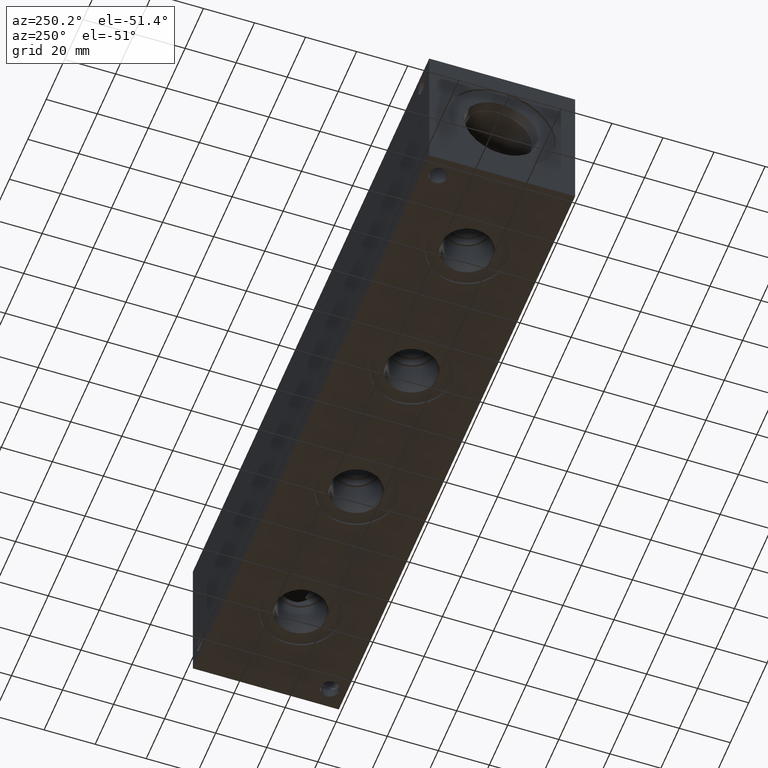
[diagram: clean part render]
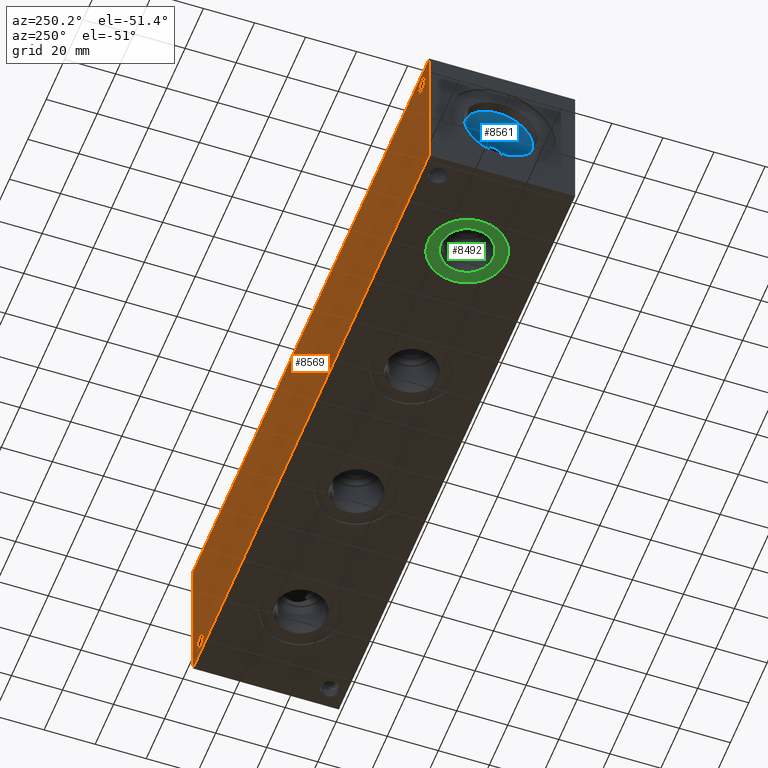
[diagram: same view with three faces highlighted in distinct colors, each labeled with its STEP entity id]
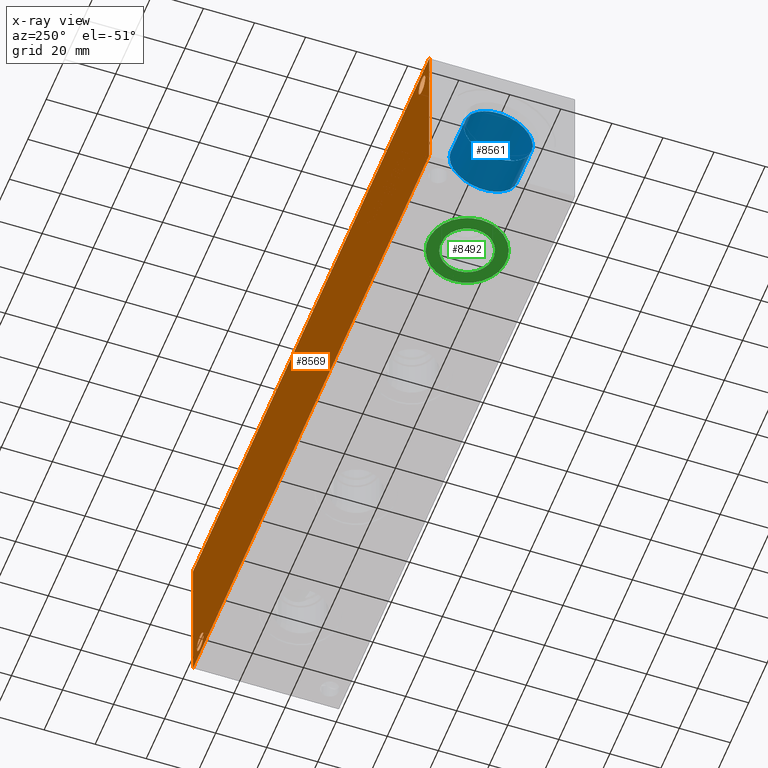
[diagram: x-ray of the same camera — body ghosted, the three highlighted faces saturated]
A machine part, auxiliary view with three faces highlighted in distinct colors.
The next image is the same camera in x-ray (body ghosted, the three faces saturated) — at least one of them is partly hidden behind the body in this view.
Their STEP definitions:

[orange] entity #8569 — the highlighted planar face has unit normal (0, 1, 0).
#214=CIRCLE('',#8949,3.5687);
#217=CIRCLE('',#8958,3.5687);
#379=FACE_BOUND('',#1560,.T.);
#380=FACE_BOUND('',#1561,.T.);
#626=PLANE('',#9132);
#1064=FACE_OUTER_BOUND('',#1559,.T.);
#1559=EDGE_LOOP('',(#7696,#7697,#7698,#7699));
#1560=EDGE_LOOP('',(#7700));
#1561=EDGE_LOOP('',(#7701));
#1854=LINE('',#13112,#2610);
#2325=LINE('',#14978,#3081);
#2326=LINE('',#14981,#3082);
#2327=LINE('',#14982,#3083);
#2610=VECTOR('',#9564,10.);
#3081=VECTOR('',#10977,10.);
#3082=VECTOR('',#10980,10.);
#3083=VECTOR('',#10981,10.);
#3629=VERTEX_POINT('',#13109);
#3630=VERTEX_POINT('',#13111);
#4020=VERTEX_POINT('',#14605);
#4025=VERTEX_POINT('',#14621);
#4129=VERTEX_POINT('',#14974);
#4131=VERTEX_POINT('',#14980);
#4594=EDGE_CURVE('',#3629,#3630,#1854,.T.);
#5156=EDGE_CURVE('',#4020,#4020,#214,.T.);
#5165=EDGE_CURVE('',#4025,#4025,#217,.T.);
#5327=EDGE_CURVE('',#4129,#3630,#2325,.T.);
#5328=EDGE_CURVE('',#4131,#4129,#2326,.T.);
#5329=EDGE_CURVE('',#4131,#3629,#2327,.T.);
#7696=ORIENTED_EDGE('',*,*,#5328,.T.);
#7697=ORIENTED_EDGE('',*,*,#5327,.T.);
#7698=ORIENTED_EDGE('',*,*,#4594,.F.);
#7699=ORIENTED_EDGE('',*,*,#5329,.F.);
#7700=ORIENTED_EDGE('',*,*,#5156,.T.);
#7701=ORIENTED_EDGE('',*,*,#5165,.T.);
#8569=ADVANCED_FACE('',(#1064,#379,#380),#626,.T.);
#8949=AXIS2_PLACEMENT_3D('',#14607,#10555,#10556);
#8958=AXIS2_PLACEMENT_3D('',#14623,#10575,#10576);
#9132=AXIS2_PLACEMENT_3D('',#14979,#10978,#10979);
#9564=DIRECTION('',(-1.,0.,0.));
#10555=DIRECTION('center_axis',(0.,-1.,0.));
#10556=DIRECTION('ref_axis',(1.,0.,0.));
#10575=DIRECTION('center_axis',(0.,-1.,0.));
#10576=DIRECTION('ref_axis',(1.,0.,0.));
#10977=DIRECTION('',(0.,0.,1.));
#10978=DIRECTION('center_axis',(0.,1.,0.));
#10979=DIRECTION('ref_axis',(-1.,0.,0.));
#10980=DIRECTION('',(-1.,0.,0.));
#10981=DIRECTION('',(0.,0.,1.));
#13109=CARTESIAN_POINT('',(257.175,57.15,57.15));
#13111=CARTESIAN_POINT('',(0.,57.15,57.15));
#13112=CARTESIAN_POINT('',(257.175,57.15,57.15));
#14605=CARTESIAN_POINT('',(4.3561,57.15,50.8));
#14607=CARTESIAN_POINT('Origin',(7.9248,57.15,50.8));
#14621=CARTESIAN_POINT('',(245.6561,57.15,6.35));
#14623=CARTESIAN_POINT('Origin',(249.2248,57.15,6.35));
#14974=CARTESIAN_POINT('',(0.,57.15,0.));
#14978=CARTESIAN_POINT('',(0.,57.15,0.));
#14979=CARTESIAN_POINT('Origin',(257.175,57.15,0.));
#14980=CARTESIAN_POINT('',(257.175,57.15,0.));
#14981=CARTESIAN_POINT('',(257.175,57.15,0.));
#14982=CARTESIAN_POINT('',(257.175,57.15,0.));

[blue] entity #8561 — the highlighted cylindrical surface (bore or boss wall) has radius 13.495 mm, axis along (-1, 0, 0).
#116=CYLINDRICAL_SURFACE('',#9112,13.495);
#307=CIRCLE('',#9109,13.495);
#308=CIRCLE('',#9110,13.495);
#310=CIRCLE('',#9113,13.495);
#311=CIRCLE('',#9114,13.495);
#1056=FACE_OUTER_BOUND('',#1549,.T.);
#1549=EDGE_LOOP('',(#7651,#7652,#7653,#7654,#7655,#7656));
#2317=LINE('',#14940,#3073);
#3073=VECTOR('',#10933,13.495);
#4114=VERTEX_POINT('',#14930);
#4115=VERTEX_POINT('',#14931);
#4117=VERTEX_POINT('',#14937);
#4118=VERTEX_POINT('',#14938);
#5304=EDGE_CURVE('',#4114,#4115,#307,.T.);
#5305=EDGE_CURVE('',#4115,#4114,#308,.T.);
#5307=EDGE_CURVE('',#4117,#4118,#310,.T.);
#5308=EDGE_CURVE('',#4117,#4115,#2317,.T.);
#5309=EDGE_CURVE('',#4118,#4117,#311,.T.);
#7651=ORIENTED_EDGE('',*,*,#5307,.F.);
#7652=ORIENTED_EDGE('',*,*,#5308,.T.);
#7653=ORIENTED_EDGE('',*,*,#5304,.F.);
#7654=ORIENTED_EDGE('',*,*,#5305,.F.);
#7655=ORIENTED_EDGE('',*,*,#5308,.F.);
#7656=ORIENTED_EDGE('',*,*,#5309,.F.);
#8561=ADVANCED_FACE('',(#1056),#116,.F.);
#9109=AXIS2_PLACEMENT_3D('',#14932,#10923,#10924);
#9110=AXIS2_PLACEMENT_3D('',#14933,#10925,#10926);
#9112=AXIS2_PLACEMENT_3D('',#14936,#10929,#10930);
#9113=AXIS2_PLACEMENT_3D('',#14939,#10931,#10932);
#9114=AXIS2_PLACEMENT_3D('',#14941,#10934,#10935);
#10923=DIRECTION('center_axis',(-1.,0.,0.));
#10924=DIRECTION('ref_axis',(0.,1.,0.));
#10925=DIRECTION('center_axis',(-1.,0.,0.));
#10926=DIRECTION('ref_axis',(0.,1.,0.));
#10929=DIRECTION('center_axis',(-1.,0.,0.));
#10930=DIRECTION('ref_axis',(0.,1.,0.));
#10931=DIRECTION('center_axis',(1.,0.,0.));
#10932=DIRECTION('ref_axis',(0.,1.,0.));
#10933=DIRECTION('',(1.,0.,0.));
#10934=DIRECTION('center_axis',(1.,0.,0.));
#10935=DIRECTION('ref_axis',(0.,1.,0.));
#14930=CARTESIAN_POINT('',(19.8374,42.07,28.575));
#14931=CARTESIAN_POINT('',(19.8374,15.08,28.575));
#14932=CARTESIAN_POINT('Origin',(19.8374,28.575,28.575));
#14933=CARTESIAN_POINT('Origin',(19.8374,28.575,28.575));
#14936=CARTESIAN_POINT('Origin',(9.9187,28.575,28.575));
#14937=CARTESIAN_POINT('',(4.285,15.08,28.575));
#14938=CARTESIAN_POINT('',(4.285,28.575,15.08));
#14939=CARTESIAN_POINT('Origin',(4.285,28.575,28.575));
#14940=CARTESIAN_POINT('',(9.9187,15.08,28.575));
#14941=CARTESIAN_POINT('Origin',(4.285,28.575,28.575));

[green] entity #8492 — the highlighted planar face has unit normal (0, 0, 1).
#204=CIRCLE('',#8929,15.3162);
#205=CIRCLE('',#8930,15.3162);
#206=CIRCLE('',#8932,10.2997);
#207=CIRCLE('',#8933,10.2997);
#365=FACE_BOUND('',#1469,.T.);
#612=PLANE('',#8931);
#987=FACE_OUTER_BOUND('',#1468,.T.);
#1468=EDGE_LOOP('',(#7291,#7292));
#1469=EDGE_LOOP('',(#7293,#7294));
#4008=VERTEX_POINT('',#14568);
#4009=VERTEX_POINT('',#14570);
#4010=VERTEX_POINT('',#14574);
#4011=VERTEX_POINT('',#14575);
#5137=EDGE_CURVE('',#4008,#4009,#204,.T.);
#5138=EDGE_CURVE('',#4009,#4008,#205,.T.);
#5139=EDGE_CURVE('',#4010,#4011,#206,.T.);
#5140=EDGE_CURVE('',#4011,#4010,#207,.T.);
#7291=ORIENTED_EDGE('',*,*,#5138,.F.);
#7292=ORIENTED_EDGE('',*,*,#5137,.F.);
#7293=ORIENTED_EDGE('',*,*,#5139,.T.);
#7294=ORIENTED_EDGE('',*,*,#5140,.T.);
#8492=ADVANCED_FACE('',(#987,#365),#612,.F.);
#8929=AXIS2_PLACEMENT_3D('',#14571,#10510,#10511);
#8930=AXIS2_PLACEMENT_3D('',#14572,#10512,#10513);
#8931=AXIS2_PLACEMENT_3D('',#14573,#10514,#10515);
#8932=AXIS2_PLACEMENT_3D('',#14576,#10516,#10517);
#8933=AXIS2_PLACEMENT_3D('',#14577,#10518,#10519);
#10510=DIRECTION('center_axis',(0.,0.,1.));
#10511=DIRECTION('ref_axis',(1.,0.,0.));
#10512=DIRECTION('center_axis',(0.,0.,1.));
#10513=DIRECTION('ref_axis',(1.,0.,0.));
#10514=DIRECTION('center_axis',(0.,0.,1.));
#10515=DIRECTION('ref_axis',(1.,0.,0.));
#10516=DIRECTION('center_axis',(0.,0.,1.));
#10517=DIRECTION('ref_axis',(1.,0.,0.));
#10518=DIRECTION('center_axis',(0.,0.,1.));
#10519=DIRECTION('ref_axis',(1.,0.,0.));
#14568=CARTESIAN_POINT('',(22.7838,28.575,0.7874));
#14570=CARTESIAN_POINT('',(53.4162,28.575,0.7874));
#14571=CARTESIAN_POINT('Origin',(38.1,28.575,0.7874));
#14572=CARTESIAN_POINT('Origin',(38.1,28.575,0.7874));
#14573=CARTESIAN_POINT('Origin',(48.3997,28.575,0.7874));
#14574=CARTESIAN_POINT('',(48.3997,28.575,0.7874));
#14575=CARTESIAN_POINT('',(27.8003,28.575,0.787400000000001));
#14576=CARTESIAN_POINT('Origin',(38.1,28.575,0.7874));
#14577=CARTESIAN_POINT('Origin',(38.1,28.575,0.7874));